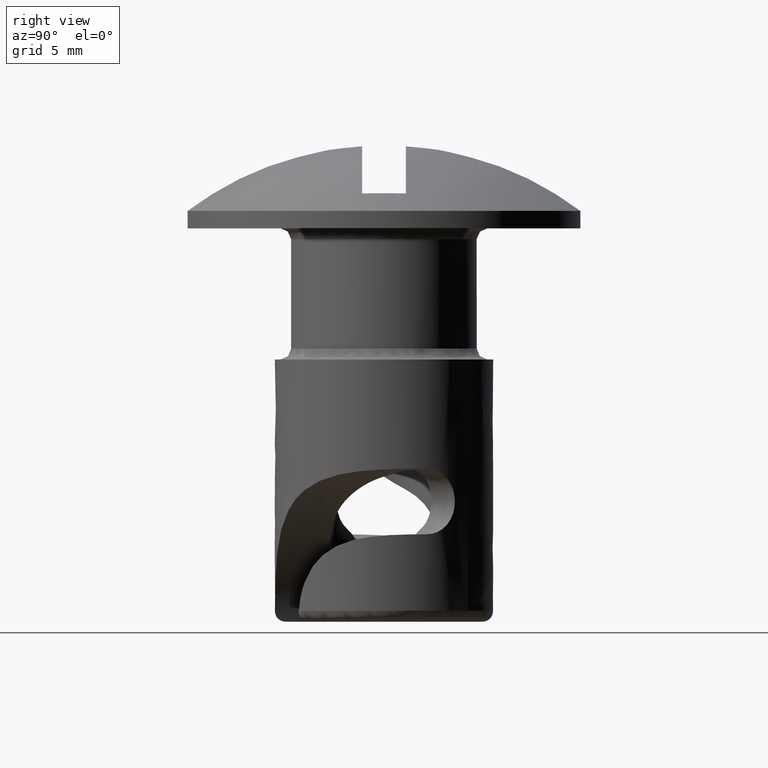
[diagram: clean part render]
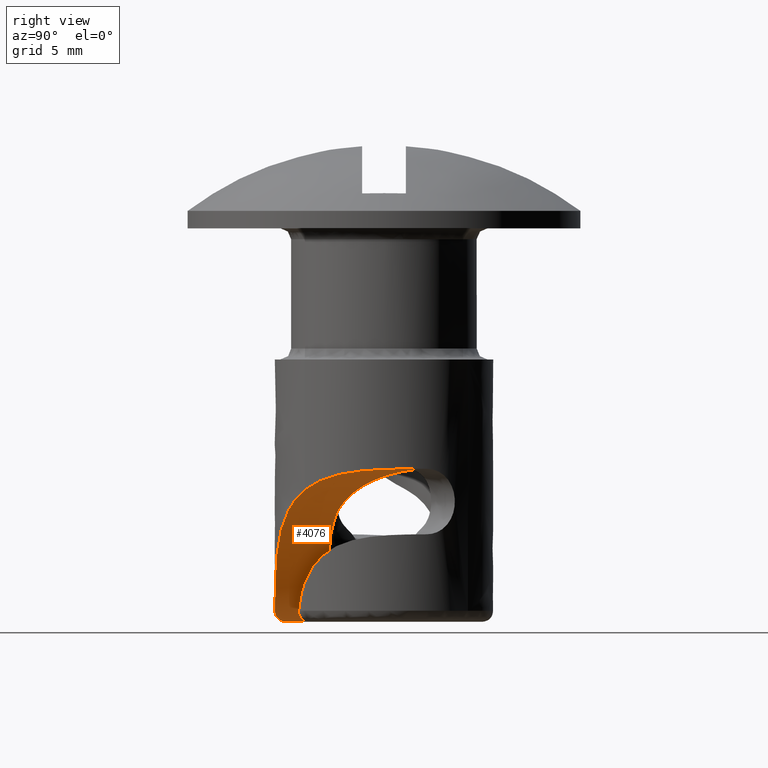
[diagram: same view with one face highlighted and labeled with its STEP entity id]
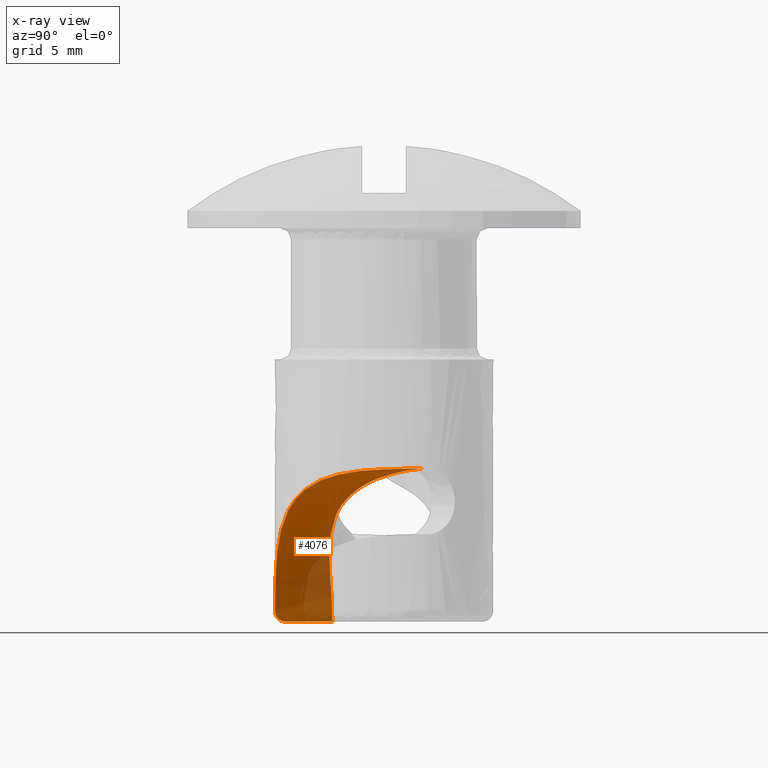
[diagram: x-ray of the same camera — body ghosted, the highlighted face saturated]
A machine part, right view. The second image highlights one B-rep face of the part: STEP entity #4076.
The next image is the same camera in x-ray: the body ghosted, the highlighted face saturated — about 19% of this face is hidden behind the body in this view.
In plain terms, the highlighted face is a freeform B-spline surface patch.
Its self-contained STEP definition (entity closure, byte-faithful):
#651=CARTESIAN_POINT('',(1.068076637585400,-2.260356674563610,-13.330051027094740));
#652=VERTEX_POINT('',#651);
#669=CARTESIAN_POINT('',(0.109048438459500,-2.497619867234626,-14.736618834905901));
#670=VERTEX_POINT('',#669);
#671=CARTESIAN_POINT('',(1.068076637585414,-2.260356674563605,-13.330051027094740));
#672=CARTESIAN_POINT('',(0.937149948566862,-2.322222900965297,-13.492076449016279));
#673=CARTESIAN_POINT('',(0.809622159256879,-2.368735237159182,-13.659008977676500));
#674=CARTESIAN_POINT('',(0.563383148044197,-2.439055983986251,-14.002714674341179));
#675=CARTESIAN_POINT('',(0.444653030483377,-2.462799112552335,-14.179485970060950));
#676=CARTESIAN_POINT('',(0.274511051210349,-2.485541717481331,-14.452236586627240));
#677=CARTESIAN_POINT('',(0.219122825742860,-2.490965140455178,-14.544421271485019));
#678=CARTESIAN_POINT('',(0.146285584374463,-2.495788301851827,-14.670660998231419));
#679=CARTESIAN_POINT('',(0.127565032722992,-2.496811146284721,-14.703578206689921));
#680=CARTESIAN_POINT('',(0.109048438459500,-2.497619867234626,-14.736618834905901));
#681=B_SPLINE_CURVE_WITH_KNOTS('',3,(#671,#672,#673,#674,#675,#676,#677,#678,#679,#680),.UNSPECIFIED.,.F.,.U.,(4,2,2,2,4),(0.0,0.124999999999999,0.249999999999999,0.312499999999999,0.334398125448549),.UNSPECIFIED.);
#682=EDGE_CURVE('',#652,#670,#681,.T.);
#792=CARTESIAN_POINT('',(-0.821620629966657,-2.361130987559410,-17.999991999999999));
#793=VERTEX_POINT('',#792);
#794=CARTESIAN_POINT('',(0.109048438459500,-2.497619867234626,-14.736618834905901));
#795=CARTESIAN_POINT('',(0.074716261886316,-2.499117377449875,-14.797880308871591));
#796=CARTESIAN_POINT('',(0.041085173261449,-2.499877103807363,-14.859566073022259));
#797=CARTESIAN_POINT('',(-0.092550670848180,-2.500321881328975,-15.111869867124840));
#798=CARTESIAN_POINT('',(-0.185777756217155,-2.494553626380586,-15.304874506510989));
#799=CARTESIAN_POINT('',(-0.355782445816423,-2.476031102559598,-15.696684103218731));
#800=CARTESIAN_POINT('',(-0.432564443295798,-2.463260349115824,-15.895486642064920));
#801=CARTESIAN_POINT('',(-0.567810300744143,-2.435642627213372,-16.299821152888640));
#802=CARTESIAN_POINT('',(-0.626276472110552,-2.420797020991100,-16.505352327865900));
#803=CARTESIAN_POINT('',(-0.698214291717043,-2.400649268829524,-16.819624382293291));
#804=CARTESIAN_POINT('',(-0.719589071910812,-2.394277589565520,-16.925553476066341));
#805=CARTESIAN_POINT('',(-0.756523931002803,-2.382864903877096,-17.138808192220861));
#806=CARTESIAN_POINT('',(-0.772021133890758,-2.377846679708183,-17.245723948289619));
#807=CARTESIAN_POINT('',(-0.809320348825374,-2.365520328906515,-17.567381413073772));
#808=CARTESIAN_POINT('',(-0.821911452742299,-2.361029787755869,-17.783037621032189));
#809=CARTESIAN_POINT('',(-0.821620629966639,-2.361130987559440,-17.999991999999999));
#810=B_SPLINE_CURVE_WITH_KNOTS('',3,(#794,#795,#796,#797,#798,#799,#800,#801,#802,#803,#804,#805,#806,#807,#808,#809),.UNSPECIFIED.,.F.,.U.,(4,2,2,2,2,2,2,4),(0.334398125448549,0.374999999999998,0.499999999999999,0.624999999999998,0.749999999999997,0.812499999999998,0.874999999999999,1.0),.UNSPECIFIED.);
#811=EDGE_CURVE('',#670,#793,#810,.T.);
#1232=CARTESIAN_POINT('',(0.313195308170549,-4.990181229067730,-17.500000000000000));
#1233=VERTEX_POINT('',#1232);
#1249=CARTESIAN_POINT('',(3.441772388405640,-3.626879167857965,-11.971468600115511));
#1250=VERTEX_POINT('',#1249);
#1251=CARTESIAN_POINT('',(0.313195308170549,-4.990181229067730,-17.500000000000000));
#1252=CARTESIAN_POINT('',(0.333307605160087,-4.988918687165163,-17.230595586466801));
#1253=CARTESIAN_POINT('',(0.369687607699450,-4.986585240363793,-16.964315957616080));
#1254=CARTESIAN_POINT('',(0.473361104742698,-4.977813315320827,-16.437737125240670));
#1255=CARTESIAN_POINT('',(0.540653155082453,-4.971373873109496,-16.177437666007279));
#1256=CARTESIAN_POINT('',(0.664073576468387,-4.955876181764422,-15.791396283450270));
#1257=CARTESIAN_POINT('',(0.708966243434276,-4.949724084001621,-15.663451768696319));
#1258=CARTESIAN_POINT('',(0.806211876258804,-4.934817258165372,-15.409039004993129));
#1259=CARTESIAN_POINT('',(0.858259316523348,-4.926103903710168,-15.283403955486669));
#1260=CARTESIAN_POINT('',(1.023296848524342,-4.895442862152564,-14.913031665037980));
#1261=CARTESIAN_POINT('',(1.145479377996969,-4.868962650668862,-14.673952784381470));
#1262=CARTESIAN_POINT('',(1.411636468358596,-4.798562055442225,-14.210881615339540));
#1263=CARTESIAN_POINT('',(1.555618855353159,-4.754668162914917,-13.986889591024591));
#1264=CARTESIAN_POINT('',(1.748117459224737,-4.684626453512756,-13.716378566405190));
#1265=CARTESIAN_POINT('',(1.787244723493187,-4.669854378188934,-13.662751957709711));
#1266=CARTESIAN_POINT('',(1.866732201556538,-4.638652114768764,-13.556457951965690));
#1267=CARTESIAN_POINT('',(1.907150851749349,-4.622195504958455,-13.503719583334840));
#1268=CARTESIAN_POINT('',(2.029366433495145,-4.570498416881686,-13.348033579078470));
#1269=CARTESIAN_POINT('',(2.112333855676477,-4.532856604690388,-13.247316401877830));
#1270=CARTESIAN_POINT('',(2.364956530456014,-4.409317565396113,-12.954258449449670));
#1271=CARTESIAN_POINT('',(2.538343073381701,-4.312871997598246,-12.770986830320741));
#1272=CARTESIAN_POINT('',(2.802864565490000,-4.141850535195151,-12.514184356325240));
#1273=CARTESIAN_POINT('',(2.891777343033104,-4.080437178412201,-12.431607207041020));
#1274=CARTESIAN_POINT('',(3.025835550917813,-3.980875263268458,-12.312326852945089));
#1275=CARTESIAN_POINT('',(3.070538309536691,-3.946511846331142,-12.273422562213060));
#1276=CARTESIAN_POINT('',(3.159190485271331,-3.875909777326030,-12.197895087925680));
#1277=CARTESIAN_POINT('',(3.203241014566233,-3.839596902979453,-12.161181363878280));
#1278=CARTESIAN_POINT('',(3.312670801834597,-3.746148145364965,-12.071872845942220));
#1279=CARTESIAN_POINT('',(3.377654621067096,-3.687720596438467,-12.020559373937630));
#1280=CARTESIAN_POINT('',(3.441772388405640,-3.626879167857965,-11.971468600115511));
#1281=B_SPLINE_CURVE_WITH_KNOTS('',3,(#1251,#1252,#1253,#1254,#1255,#1256,#1257,#1258,#1259,#1260,#1261,#1262,#1263,#1264,#1265,#1266,#1267,#1268,#1269,#1270,#1271,#1272,#1273,#1274,#1275,#1276,#1277,#1278,#1279,#1280),.UNSPECIFIED.,.F.,.U.,(4,2,2,2,2,2,2,2,2,2,2,2,2,2,4),(0.0,0.062500000000000,0.125000000000000,0.156250000000000,0.187500000000000,0.250000000000001,0.312500000000001,0.328125000000001,0.343750000000001,0.375000000000002,0.437500000000002,0.468750000000002,0.484375000000002,0.500000000000002,0.523472651077458),.UNSPECIFIED.);
#1282=EDGE_CURVE('',#1233,#1250,#1281,.T.);
#1400=CARTESIAN_POINT('',(4.602524578819660,1.953654908462775,-11.0));
#1401=VERTEX_POINT('',#1400);
#1402=CARTESIAN_POINT('',(3.441772388405640,-3.626879167857965,-11.971468600115511));
#1403=CARTESIAN_POINT('',(3.548379290769163,-3.525720053493805,-11.889846318762080));
#1404=CARTESIAN_POINT('',(3.652592007997236,-3.417887812083153,-11.814368646535421));
#1405=CARTESIAN_POINT('',(3.834675302809544,-3.210957414361682,-11.688848266577450));
#1406=CARTESIAN_POINT('',(3.913651459617371,-3.114392132599221,-11.636739530120360));
#1407=CARTESIAN_POINT('',(4.066784031874964,-2.911593689698409,-11.539596723258800));
#1408=CARTESIAN_POINT('',(4.141246852794475,-2.804805105468261,-11.494399087561410));
#1409=CARTESIAN_POINT('',(4.351417024670488,-2.476428974229273,-11.371493494087339));
#1410=CARTESIAN_POINT('',(4.475381036197223,-2.245292893238941,-11.305440532652931));
#1411=CARTESIAN_POINT('',(4.634749717476911,-1.880605603169894,-11.224529621177650));
#1412=CARTESIAN_POINT('',(4.683432074679257,-1.756036664794147,-11.200601978509541));
#1413=CARTESIAN_POINT('',(4.749367729174497,-1.564623638782541,-11.168669482225370));
#1414=CARTESIAN_POINT('',(4.770196351585413,-1.499932920731350,-11.158670236486540));
#1415=CARTESIAN_POINT('',(4.809062719418975,-1.370215027258469,-11.140059688893651));
#1416=CARTESIAN_POINT('',(4.827145104689722,-1.305074429956659,-11.131426498640820));
#1417=CARTESIAN_POINT('',(4.910850496597194,-0.978002750190547,-11.091266604662540));
#1418=CARTESIAN_POINT('',(4.956468675063249,-0.711993500965210,-11.068656572854080));
#1419=CARTESIAN_POINT('',(4.986424401718830,-0.374385302542007,-11.047762025197651));
#1420=CARTESIAN_POINT('',(4.991054925525993,-0.306607105400296,-11.043957468186640));
#1421=CARTESIAN_POINT('',(4.997554832299331,-0.170539251296157,-11.037005701898901));
#1422=CARTESIAN_POINT('',(4.999424491643975,-0.102133219152848,-11.033853767759441));
#1423=CARTESIAN_POINT('',(5.000809247173389,0.103035256701305,-11.025291505781031));
#1424=CARTESIAN_POINT('',(4.996123775507819,0.239010531266467,-11.020793447954629));
#1425=CARTESIAN_POINT('',(4.965686761433352,0.644569415835293,-11.009847397005361));
#1426=CARTESIAN_POINT('',(4.923659035060767,0.911799969775102,-11.005870758018400));
#1427=CARTESIAN_POINT('',(4.827833167118976,1.307852232436450,-11.002173938973151));
#1428=CARTESIAN_POINT('',(4.790312114640976,1.439329984281694,-11.001338796190600));
#1429=CARTESIAN_POINT('',(4.704332169186993,1.699417314437545,-11.000251810538540));
#1430=CARTESIAN_POINT('',(4.656069048272672,1.827512110287284,-11.000000156412080));
#1431=CARTESIAN_POINT('',(4.602524578819660,1.953654908462775,-11.0));
#1432=B_SPLINE_CURVE_WITH_KNOTS('',3,(#1402,#1403,#1404,#1405,#1406,#1407,#1408,#1409,#1410,#1411,#1412,#1413,#1414,#1415,#1416,#1417,#1418,#1419,#1420,#1421,#1422,#1423,#1424,#1425,#1426,#1427,#1428,#1429,#1430,#1431),.UNSPECIFIED.,.F.,.U.,(4,2,2,2,2,2,2,2,2,2,2,2,2,2,4),(0.523472651077458,0.562500000000002,0.593750000000002,0.625000000000002,0.687500000000001,0.718750000000001,0.734375000000001,0.750000000000001,0.812500000000001,0.828125000000001,0.843750000000001,0.875000000000000,0.937500000000000,0.968750000000000,1.0),.UNSPECIFIED.);
#1433=EDGE_CURVE('',#1250,#1401,#1432,.T.);
#3498=CARTESIAN_POINT('',(1.068076637585400,-2.260356674563610,-13.330051027094740));
#3499=CARTESIAN_POINT('',(1.115229112929385,-2.244023241926250,-13.275333955195030));
#3500=CARTESIAN_POINT('',(1.211730854380713,-2.210595416941781,-13.163350592987230));
#3501=CARTESIAN_POINT('',(1.358311729308697,-2.137111471205510,-12.997671667788840));
#3502=CARTESIAN_POINT('',(1.510698853456182,-2.045379139848970,-12.830309410825370));
#3503=CARTESIAN_POINT('',(1.669266598482470,-1.933390077886361,-12.662611148428731));
#3504=CARTESIAN_POINT('',(1.834499003681360,-1.801476896097928,-12.495511932404680));
#3505=CARTESIAN_POINT('',(2.006848521250338,-1.649354855903914,-12.330149907150670));
#3506=CARTESIAN_POINT('',(2.281885925708121,-1.385158574542891,-12.081593098306289));
#3507=CARTESIAN_POINT('',(2.650279896772138,-0.989289579836042,-11.788995763194020));
#3508=CARTESIAN_POINT('',(3.047438764733810,-0.487749950907193,-11.529311234985110));
#3509=CARTESIAN_POINT('',(3.432677774202107,0.107016163792380,-11.311735576880340));
#3510=CARTESIAN_POINT('',(3.758033955178376,0.609549184925592,-11.175795614459490));
#3511=CARTESIAN_POINT('',(4.058063437371125,1.064728872863234,-11.088963895350210));
#3512=CARTESIAN_POINT('',(4.218347448895150,1.297634946728945,-11.053843703545819));
#3513=CARTESIAN_POINT('',(4.336846288295523,1.466820238902366,-11.033268701986660));
#3514=CARTESIAN_POINT('',(4.416972979975145,1.579961288235898,-11.021473881928280));
#3515=CARTESIAN_POINT('',(4.489088230681131,1.685155168932808,-11.012538481996479));
#3516=CARTESIAN_POINT('',(4.546330543999599,1.777546998504543,-11.006463907625241));
#3517=CARTESIAN_POINT('',(4.583037313767617,1.851600472212056,-11.002830392207970));
#3518=CARTESIAN_POINT('',(4.606877663176641,1.908480067845441,-11.000629246264969));
#3519=CARTESIAN_POINT('',(4.603749069010215,1.940947562438768,-11.000177002285209));
#3520=CARTESIAN_POINT('',(4.602524578819660,1.953654908462775,-11.0));
#3521=B_SPLINE_CURVE_WITH_KNOTS('',3,(#3498,#3499,#3500,#3501,#3502,#3503,#3504,#3505,#3506,#3507,#3508,#3509,#3510,#3511,#3512,#3513,#3514,#3515,#3516,#3517,#3518,#3519,#3520),.UNSPECIFIED.,.F.,.U.,(4,1,1,1,1,1,1,1,1,1,1,1,1,1,1,1,1,1,1,1,4),(0.0,0.035662435006751,0.072986350291052,0.112136524023357,0.153255781696606,0.196467424953497,0.241877711138208,0.289578203578660,0.415649407983018,0.537089061209152,0.620944628729672,0.772338144446972,0.832270219681708,0.886762381885274,0.909511211622193,0.932248445185278,0.953756013725681,0.971138477669592,0.984470227757006,0.993921853471062,1.0),.UNSPECIFIED.);
#3522=EDGE_CURVE('',#652,#1401,#3521,.T.);
#4018=CARTESIAN_POINT('',(6.848259797380345,-2.660330836371547,-10.992860359290921));
#4019=CARTESIAN_POINT('',(4.795831317110056,2.174889798446873,-10.992860359290921));
#4020=CARTESIAN_POINT('',(0.058414366571750,-5.542447949802503,-11.052651994298543));
#4021=CARTESIAN_POINT('',(-1.994014113698541,-0.707227314984082,-11.052651994298543));
#4022=CARTESIAN_POINT('',(0.468730485537874,-5.368279167841290,-18.415632436166330));
#4023=CARTESIAN_POINT('',(-1.583697994732416,-0.533058533022870,-18.415632436166330));
#4031=(BOUNDED_SURFACE()B_SPLINE_SURFACE(1,2,((#4018,#4020,#4022),(#4019,#4021,#4023)),.UNSPECIFIED.,.F.,.F.,.U.)B_SPLINE_SURFACE_WITH_KNOTS((2,2),(3,3),(0.0,5.252791758103347),(0.0,12.029749367071400),.UNSPECIFIED.)GEOMETRIC_REPRESENTATION_ITEM()RATIONAL_B_SPLINE_SURFACE(((1.0,0.688354575693754,1.0),(1.0,0.688354575693754,1.0)))REPRESENTATION_ITEM('')SURFACE());
#4032=ORIENTED_EDGE('',*,*,#811,.F.);
#4033=ORIENTED_EDGE('',*,*,#682,.F.);
#4034=ORIENTED_EDGE('',*,*,#3522,.T.);
#4035=ORIENTED_EDGE('',*,*,#1433,.F.);
#4036=ORIENTED_EDGE('',*,*,#1282,.F.);
#4037=CARTESIAN_POINT('',(0.087015950987257,-4.501745575601240,-17.999991999999999));
#4038=VERTEX_POINT('',#4037);
#4039=CARTESIAN_POINT('',(0.087015950987257,-4.501745575601240,-17.999991999999999));
#4040=CARTESIAN_POINT('',(0.100357209291074,-4.533176065592405,-17.999828137345808));
#4041=CARTESIAN_POINT('',(0.113492783768891,-4.564134728133155,-17.996681322381679));
#4042=CARTESIAN_POINT('',(0.139384182659335,-4.625122187302729,-17.984566981715421));
#4043=CARTESIAN_POINT('',(0.152205178239702,-4.655304837875675,-17.975536847477120));
#4044=CARTESIAN_POINT('',(0.177217204719512,-4.713973045016430,-17.951458588773519));
#4045=CARTESIAN_POINT('',(0.189151041319235,-4.741854580024276,-17.936692399484748));
#4046=CARTESIAN_POINT('',(0.206272095006102,-4.781485925265046,-17.910487510037509));
#4047=CARTESIAN_POINT('',(0.211848484355558,-4.794328868249427,-17.901072378625070));
#4048=CARTESIAN_POINT('',(0.222745169518179,-4.819247407055977,-17.880833467842120));
#4049=CARTESIAN_POINT('',(0.228094068932998,-4.831386759787489,-17.869941049458308));
#4050=CARTESIAN_POINT('',(0.243464293329626,-4.865917370357227,-17.835695517361589));
#4051=CARTESIAN_POINT('',(0.252860253558510,-4.886546251451990,-17.810754568964111));
#4052=CARTESIAN_POINT('',(0.270073306721874,-4.922963001899326,-17.756650727839450));
#4053=CARTESIAN_POINT('',(0.277964478519942,-4.938880613638614,-17.727101365883708));
#4054=CARTESIAN_POINT('',(0.291581048993578,-4.964319579526907,-17.665837336152279));
#4055=CARTESIAN_POINT('',(0.297362217473513,-4.973981648385861,-17.634072920754310));
#4056=CARTESIAN_POINT('',(0.306906426846425,-4.987028385848515,-17.568235790648139));
#4057=CARTESIAN_POINT('',(0.310646765368394,-4.990341174572419,-17.534137703439448));
#4058=CARTESIAN_POINT('',(0.313195308170549,-4.990181229067730,-17.500000000000000));
#4059=B_SPLINE_CURVE_WITH_KNOTS('',3,(#4039,#4040,#4041,#4042,#4043,#4044,#4045,#4046,#4047,#4048,#4049,#4050,#4051,#4052,#4053,#4054,#4055,#4056,#4057,#4058),.UNSPECIFIED.,.F.,.U.,(4,2,2,2,2,2,2,2,2,4),(0.0,0.124999999999992,0.249999999999983,0.374999999999975,0.437499999999974,0.499999999999973,0.624999999999980,0.749999999999986,0.874999999999993,1.0),.UNSPECIFIED.);
#4060=EDGE_CURVE('',#4038,#1233,#4059,.T.);
#4061=ORIENTED_EDGE('',*,*,#4060,.F.);
#4062=CARTESIAN_POINT('',(0.085926736938857,-4.499179546970655,-17.999991999999999));
#4063=VERTEX_POINT('',#4062);
#4064=CARTESIAN_POINT('',(0.087015950987257,-4.501745575601240,-17.999991999999999));
#4065=CARTESIAN_POINT('',(0.085926736938857,-4.499179546970655,-17.999991999999999));
#4066=QUASI_UNIFORM_CURVE('',1,(#4064,#4065),.UNSPECIFIED.,.F.,.U.);
#4067=EDGE_CURVE('',#4038,#4063,#4066,.T.);
#4068=ORIENTED_EDGE('',*,*,#4067,.T.);
#4069=CARTESIAN_POINT('',(0.085926736938857,-4.499179546970655,-17.999991999999999));
#4070=CARTESIAN_POINT('',(-0.821620629966657,-2.361130987559410,-17.999991999999999));
#4071=QUASI_UNIFORM_CURVE('',1,(#4069,#4070),.UNSPECIFIED.,.F.,.U.);
#4072=EDGE_CURVE('',#4063,#793,#4071,.T.);
#4073=ORIENTED_EDGE('',*,*,#4072,.T.);
#4074=EDGE_LOOP('',(#4032,#4033,#4034,#4035,#4036,#4061,#4068,#4073));
#4075=FACE_OUTER_BOUND('',#4074,.T.);
#4076=ADVANCED_FACE('',(#4075),#4031,.F.);